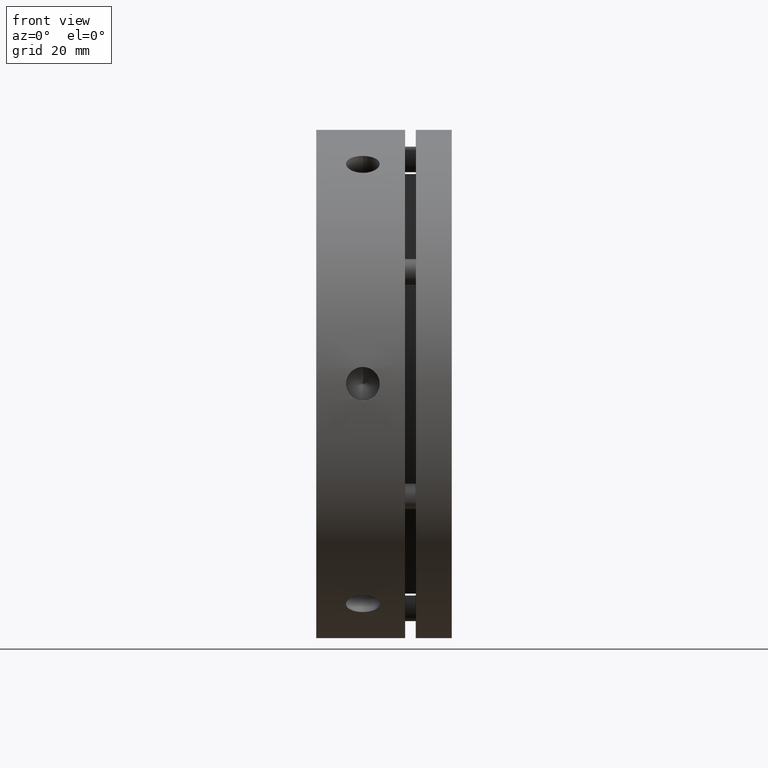
[diagram: clean part render]
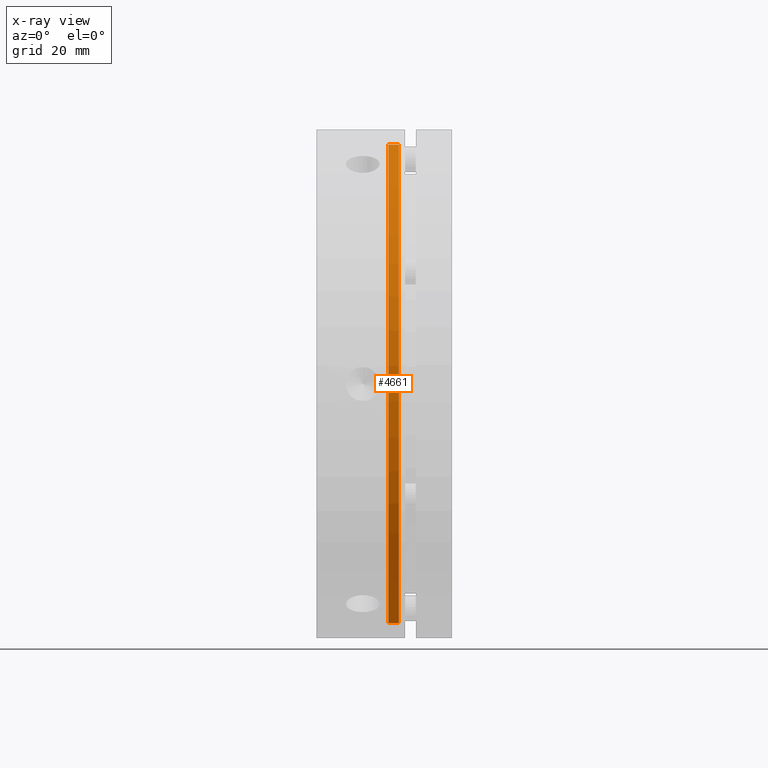
[diagram: x-ray — body ghosted, one internal face saturated and labeled with its STEP entity id]
A machine part, front view, then the same camera in x-ray: the body is ghosted and one INTERNAL B-rep face — a face not visible from any outside direction — is saturated and labeled: STEP entity #4661.
In plain terms, the highlighted cylindrical surface (partial cylindrical patch) has radius 56.5 mm, axis along (-1, 0, 0).
Its self-contained STEP definition (entity closure, byte-faithful):
#98 = CARTESIAN_POINT ( 'NONE',  ( 17.00000000000000000, 0.0000000000000000000, 56.50000000000000000 ) ) ;
#710 = AXIS2_PLACEMENT_3D ( 'NONE', #3084, #3082, #3080 ) ;
#778 = AXIS2_PLACEMENT_3D ( 'NONE', #1958, #1959, #1960 ) ;
#791 = AXIS2_PLACEMENT_3D ( 'NONE', #1896, #1897, #1898 ) ;
#1769 = CARTESIAN_POINT ( 'NONE',  ( 17.00000000000000000, 6.919254415182545300E-015, -56.50000000000000000 ) ) ;
#1795 = CARTESIAN_POINT ( 'NONE',  ( 19.49999999999999600, 6.919254415182545300E-015, -56.50000000000000000 ) ) ;
#1796 = CARTESIAN_POINT ( 'NONE',  ( 19.49999999999999600, 0.0000000000000000000, 56.50000000000000000 ) ) ;
#1891 = DIRECTION ( 'NONE',  ( -1.000000000000000000, 0.0000000000000000000, 0.0000000000000000000 ) ) ;
#1892 = CARTESIAN_POINT ( 'NONE',  ( 18.24999999999999600, 0.0000000000000000000, 56.50000000000000000 ) ) ;
#1893 = CARTESIAN_POINT ( 'NONE',  ( 18.24999999999999600, 6.919254415182545300E-015, -56.50000000000000000 ) ) ;
#1894 = DIRECTION ( 'NONE',  ( -1.000000000000000000, 0.0000000000000000000, 0.0000000000000000000 ) ) ;
#1896 = CARTESIAN_POINT ( 'NONE',  ( 17.00000000000000000, 0.0000000000000000000, 0.0000000000000000000 ) ) ;
#1897 = DIRECTION ( 'NONE',  ( -1.000000000000000000, 0.0000000000000000000, 0.0000000000000000000 ) ) ;
#1898 = DIRECTION ( 'NONE',  ( 0.0000000000000000000, 0.0000000000000000000, 1.000000000000000000 ) ) ;
#1958 = CARTESIAN_POINT ( 'NONE',  ( 19.49999999999999600, 0.0000000000000000000, 0.0000000000000000000 ) ) ;
#1959 = DIRECTION ( 'NONE',  ( 1.000000000000000000, -0.0000000000000000000, -0.0000000000000000000 ) ) ;
#1960 = DIRECTION ( 'NONE',  ( 0.0000000000000000000, 0.0000000000000000000, 1.000000000000000000 ) ) ;
#2070 = ORIENTED_EDGE ( 'NONE', *, *, #4506, .F. ) ;
#2072 = ORIENTED_EDGE ( 'NONE', *, *, #4505, .T. ) ;
#2073 = ORIENTED_EDGE ( 'NONE', *, *, #4504, .T. ) ;
#2074 = ORIENTED_EDGE ( 'NONE', *, *, #4530, .T. ) ;
#2407 = LINE ( 'NONE', #1893, #2415 ) ;
#2408 = VECTOR ( 'NONE', #1891, 1000.000000000000000 ) ;
#2413 = CIRCLE ( 'NONE', #791, 56.50000000000000000 ) ;
#2414 = LINE ( 'NONE', #1892, #2408 ) ;
#2415 = VECTOR ( 'NONE', #1894, 1000.000000000000000 ) ;
#2446 = CIRCLE ( 'NONE', #778, 56.50000000000000000 ) ;
#2608 = FACE_OUTER_BOUND ( 'NONE', #4370, .T. ) ;
#2617 = CYLINDRICAL_SURFACE ( 'NONE', #710, 56.50000000000000000 ) ;
#3080 = DIRECTION ( 'NONE',  ( 0.0000000000000000000, 0.0000000000000000000, 1.000000000000000000 ) ) ;
#3082 = DIRECTION ( 'NONE',  ( -1.000000000000000000, 0.0000000000000000000, 0.0000000000000000000 ) ) ;
#3084 = CARTESIAN_POINT ( 'NONE',  ( 18.24999999999999600, 0.0000000000000000000, 0.0000000000000000000 ) ) ;
#3763 = VERTEX_POINT ( 'NONE', #98 ) ;
#4358 = VERTEX_POINT ( 'NONE', #1769 ) ;
#4370 = EDGE_LOOP ( 'NONE', ( #2074, #2073, #2072, #2070 ) ) ;
#4400 = VERTEX_POINT ( 'NONE', #1795 ) ;
#4402 = VERTEX_POINT ( 'NONE', #1796 ) ;
#4504 = EDGE_CURVE ( 'NONE', #4400, #4358, #2407, .T. ) ;
#4505 = EDGE_CURVE ( 'NONE', #4358, #3763, #2413, .T. ) ;
#4506 = EDGE_CURVE ( 'NONE', #4402, #3763, #2414, .T. ) ;
#4530 = EDGE_CURVE ( 'NONE', #4402, #4400, #2446, .T. ) ;
#4661 = ADVANCED_FACE ( 'NONE', ( #2608 ), #2617, .F. ) ;